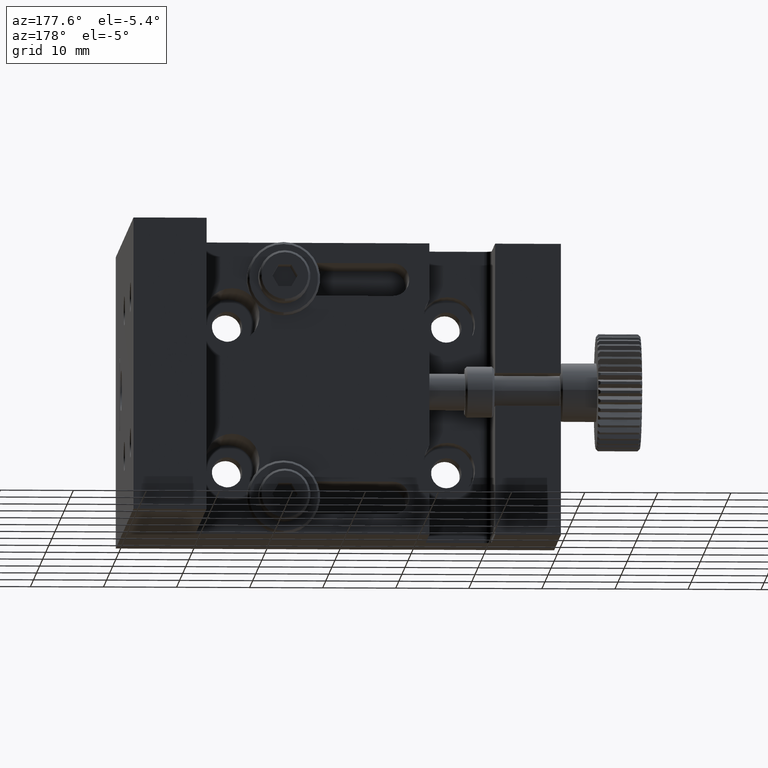
[diagram: clean part render]
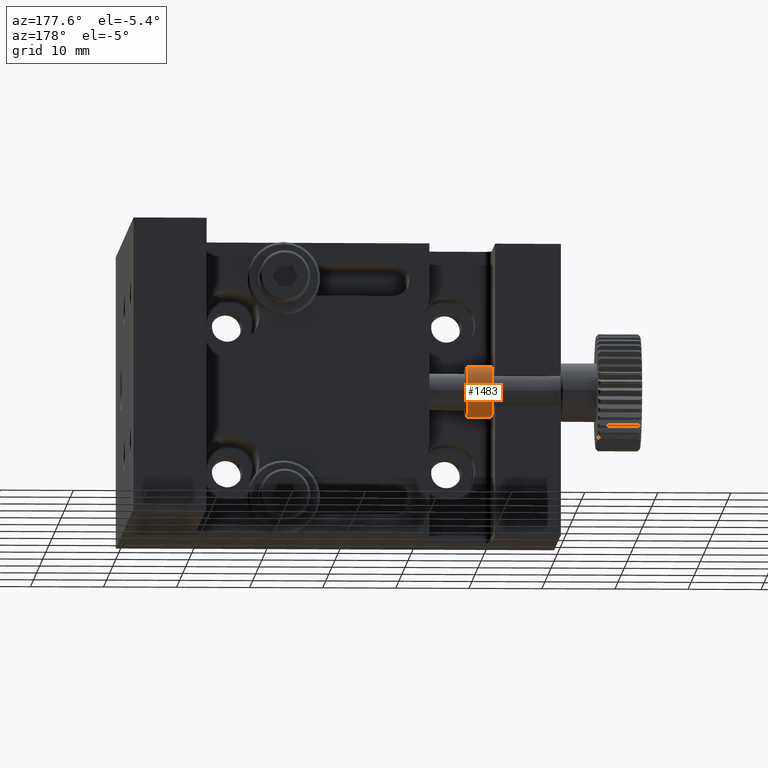
[diagram: same view with one face highlighted and labeled with its STEP entity id]
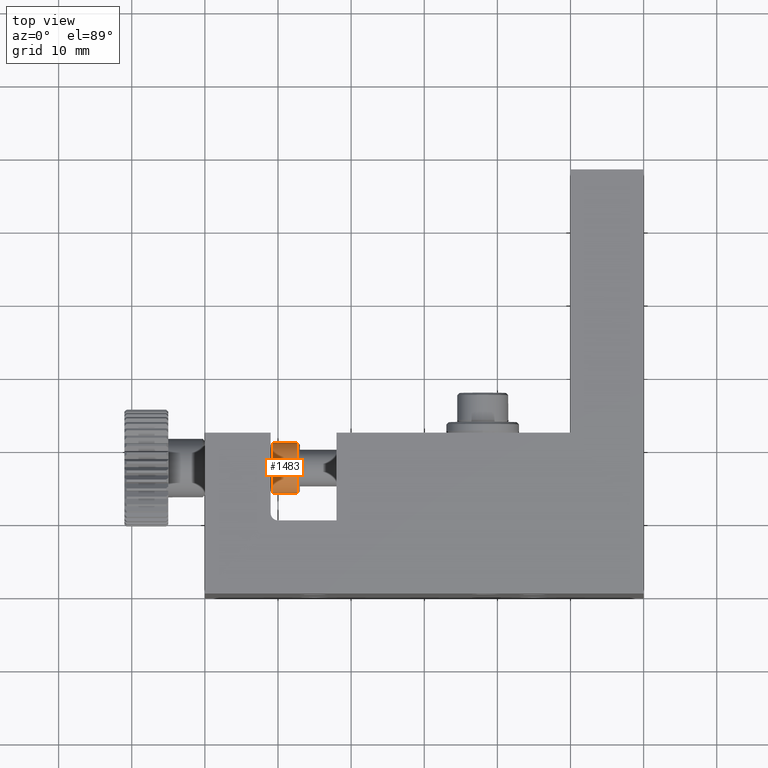
[diagram: same view with one face highlighted and labeled with its STEP entity id]
A machine part, auxiliary view. The second image highlights one B-rep face of the part: STEP entity #1483.
A second angle (top view) of the same face is appended — the face is thin or edge-on in the first view.
In plain terms, the highlighted cylindrical surface (bore or boss wall) has radius 3.5005 mm, axis along (-1, 0, 0).
Its self-contained STEP definition (entity closure, byte-faithful):
#504 = CIRCLE ( 'NONE', #8003, 3.500500000000021039 ) ;
#962 = DIRECTION ( 'NONE',  ( 0.000000000000000000, 1.000000000000000000, 0.000000000000000000 ) ) ;
#1030 = CARTESIAN_POINT ( 'NONE',  ( 9.301000000000000156, 21.00050000000002370, -20.00000000000000000 ) ) ;
#1103 = EDGE_LOOP ( 'NONE', ( #11120 ) ) ;
#1483 = ADVANCED_FACE ( 'NONE', ( #10241, #11182 ), #3293, .T. ) ;
#1740 = DIRECTION ( 'NONE',  ( 1.000000000000000000, -6.123233995736769734E-17, -0.000000000000000000 ) ) ;
#2016 = DIRECTION ( 'NONE',  ( -1.000000000000000000, 6.123233995736769734E-17, 0.000000000000000000 ) ) ;
#2259 = CIRCLE ( 'NONE', #12511, 3.500499999972817022 ) ;
#3293 = CYLINDRICAL_SURFACE ( 'NONE', #9545, 3.500500000000021039 ) ;
#5388 = EDGE_LOOP ( 'NONE', ( #11248 ) ) ;
#7896 = CARTESIAN_POINT ( 'NONE',  ( 12.70100000007369090, 17.50000000000000000, -20.00000000000000000 ) ) ;
#8003 = AXIS2_PLACEMENT_3D ( 'NONE', #10133, #11206, #962 ) ;
#8891 = DIRECTION ( 'NONE',  ( 0.000000000000000000, 1.000000000000000000, 0.000000000000000000 ) ) ;
#9178 = CARTESIAN_POINT ( 'NONE',  ( -11.00000000000000000, 17.50000000000000000, -20.00000000000000000 ) ) ;
#9272 = VERTEX_POINT ( 'NONE', #11539 ) ;
#9545 = AXIS2_PLACEMENT_3D ( 'NONE', #9178, #2016, #10106 ) ;
#10106 = DIRECTION ( 'NONE',  ( 0.000000000000000000, 1.000000000000000000, 0.000000000000000000 ) ) ;
#10133 = CARTESIAN_POINT ( 'NONE',  ( 9.301000000000000156, 17.50000000000000000, -20.00000000000000000 ) ) ;
#10241 = FACE_OUTER_BOUND ( 'NONE', #5388, .T. ) ;
#10797 = EDGE_CURVE ( 'NONE', #13017, #13017, #504, .T. ) ;
#11120 = ORIENTED_EDGE ( 'NONE', *, *, #10797, .T. ) ;
#11182 = FACE_OUTER_BOUND ( 'NONE', #1103, .T. ) ;
#11206 = DIRECTION ( 'NONE',  ( 1.000000000000000000, -6.123233995736769734E-17, -0.000000000000000000 ) ) ;
#11248 = ORIENTED_EDGE ( 'NONE', *, *, #11295, .F. ) ;
#11295 = EDGE_CURVE ( 'NONE', #9272, #9272, #2259, .T. ) ;
#11539 = CARTESIAN_POINT ( 'NONE',  ( 12.70100000007369090, 21.00049999997281702, -20.00000000000000000 ) ) ;
#12511 = AXIS2_PLACEMENT_3D ( 'NONE', #7896, #1740, #8891 ) ;
#13017 = VERTEX_POINT ( 'NONE', #1030 ) ;